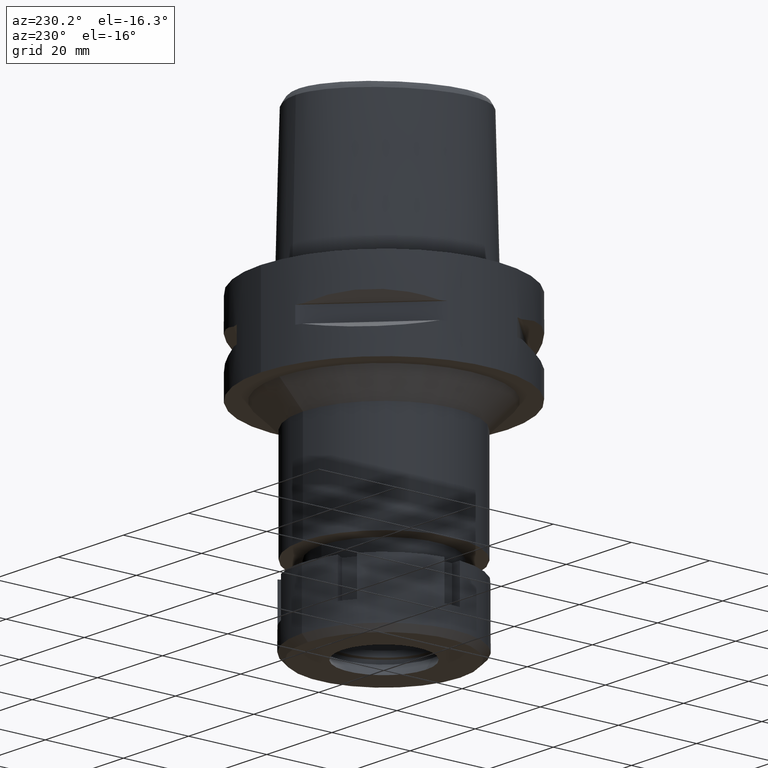
[diagram: clean part render]
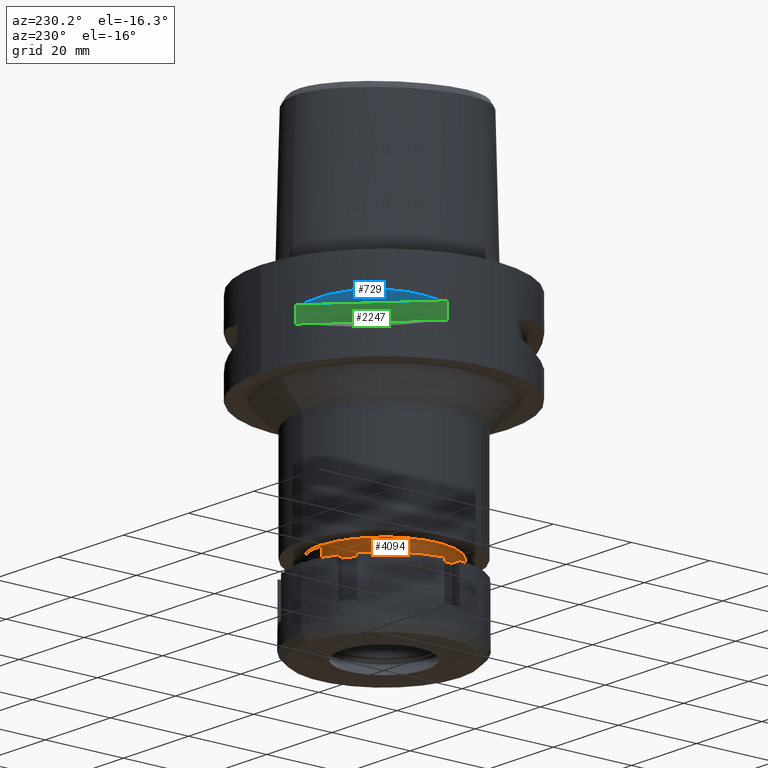
[diagram: same view with three faces highlighted in distinct colors, each labeled with its STEP entity id]
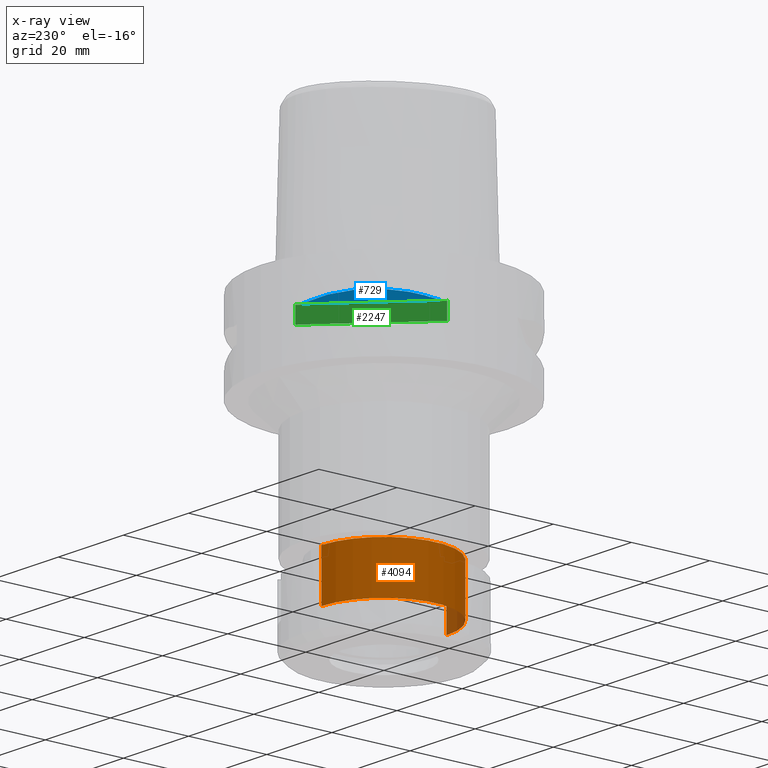
[diagram: x-ray of the same camera — body ghosted, the three highlighted faces saturated]
A machine part, auxiliary view with three faces highlighted in distinct colors.
The next image is the same camera in x-ray (body ghosted, the three faces saturated) — at least one of them is partly hidden behind the body in this view.
Their STEP definitions:

[orange] entity #4094 — the highlighted cylindrical surface (partial cylindrical patch) has radius 16 mm, axis along (0, 0, -1).
#31 = DIRECTION ( 'NONE',  ( 0.0000000000000000000, 0.0000000000000000000, -1.000000000000000000 ) ) ;
#409 = DIRECTION ( 'NONE',  ( 0.0000000000000000000, 1.000000000000000000, 0.0000000000000000000 ) ) ;
#497 = ORIENTED_EDGE ( 'NONE', *, *, #5129, .T. ) ;
#711 = EDGE_CURVE ( 'NONE', #2809, #4864, #4656, .T. ) ;
#761 = ORIENTED_EDGE ( 'NONE', *, *, #4172, .F. ) ;
#830 = ORIENTED_EDGE ( 'NONE', *, *, #1530, .T. ) ;
#936 = DIRECTION ( 'NONE',  ( 0.0000000000000000000, -1.000000000000000000, 0.0000000000000000000 ) ) ;
#1309 = CARTESIAN_POINT ( 'NONE',  ( 0.0000000000000000000, -16.00000000000000000, -54.50000000000000000 ) ) ;
#1530 = EDGE_CURVE ( 'NONE', #4864, #1945, #3738, .T. ) ;
#1618 = EDGE_LOOP ( 'NONE', ( #830, #761, #497, #2200 ) ) ;
#1654 = CARTESIAN_POINT ( 'NONE',  ( 0.0000000000000000000, 1.265672466918999865E-14, 3.350000000000000089 ) ) ;
#1656 = AXIS2_PLACEMENT_3D ( 'NONE', #1654, #5090, #3355 ) ;
#1728 = FACE_OUTER_BOUND ( 'NONE', #1618, .T. ) ;
#1945 = VERTEX_POINT ( 'NONE', #4846 ) ;
#2145 = CYLINDRICAL_SURFACE ( 'NONE', #1656, 16.00000000000000000 ) ;
#2200 = ORIENTED_EDGE ( 'NONE', *, *, #711, .T. ) ;
#2402 = VECTOR ( 'NONE', #5442, 1000.000000000000000 ) ;
#2582 = CARTESIAN_POINT ( 'NONE',  ( 0.0000000000000000000, 16.00000000000000000, -54.50000000000000000 ) ) ;
#2634 = CARTESIAN_POINT ( 'NONE',  ( 0.0000000000000000000, 1.265672466918999865E-14, -54.50000000000000000 ) ) ;
#2809 = VERTEX_POINT ( 'NONE', #2582 ) ;
#3304 = CARTESIAN_POINT ( 'NONE',  ( 0.0000000000000000000, 1.265672466918999865E-14, -67.00000000000000000 ) ) ;
#3355 = DIRECTION ( 'NONE',  ( 0.0000000000000000000, -1.000000000000000000, 0.0000000000000000000 ) ) ;
#3475 = AXIS2_PLACEMENT_3D ( 'NONE', #3304, #4962, #409 ) ;
#3590 = CIRCLE ( 'NONE', #5328, 16.00000000000000000 ) ;
#3728 = CARTESIAN_POINT ( 'NONE',  ( 0.0000000000000000000, -16.00000000000000000, -54.50000000000000000 ) ) ;
#3738 = CIRCLE ( 'NONE', #3475, 16.00000000000000000 ) ;
#3748 = DIRECTION ( 'NONE',  ( 0.0000000000000000000, 0.0000000000000000000, -1.000000000000000000 ) ) ;
#3775 = VECTOR ( 'NONE', #31, 1000.000000000000000 ) ;
#3827 = CARTESIAN_POINT ( 'NONE',  ( 0.0000000000000000000, 16.00000000000000000, -67.00000000000000000 ) ) ;
#4094 = ADVANCED_FACE ( 'NONE', ( #1728 ), #2145, .T. ) ;
#4172 = EDGE_CURVE ( 'NONE', #4373, #1945, #4252, .T. ) ;
#4233 = CARTESIAN_POINT ( 'NONE',  ( 0.0000000000000000000, 16.00000000000000000, -54.50000000000000000 ) ) ;
#4252 = LINE ( 'NONE', #1309, #3775 ) ;
#4373 = VERTEX_POINT ( 'NONE', #3728 ) ;
#4656 = LINE ( 'NONE', #4233, #2402 ) ;
#4846 = CARTESIAN_POINT ( 'NONE',  ( 0.0000000000000000000, -16.00000000000000000, -67.00000000000000000 ) ) ;
#4864 = VERTEX_POINT ( 'NONE', #3827 ) ;
#4962 = DIRECTION ( 'NONE',  ( 0.0000000000000000000, 0.0000000000000000000, 1.000000000000000000 ) ) ;
#5090 = DIRECTION ( 'NONE',  ( 0.0000000000000000000, 0.0000000000000000000, -1.000000000000000000 ) ) ;
#5129 = EDGE_CURVE ( 'NONE', #4373, #2809, #3590, .T. ) ;
#5328 = AXIS2_PLACEMENT_3D ( 'NONE', #2634, #3748, #936 ) ;
#5442 = DIRECTION ( 'NONE',  ( 0.0000000000000000000, 0.0000000000000000000, -1.000000000000000000 ) ) ;

[blue] entity #729 — the highlighted planar face has unit normal (0.3536, -0.3536, 0.866).
#9 = CARTESIAN_POINT ( 'NONE',  ( -14.84422749192772883, 27.88214534473898354, -8.906206096515614234 ) ) ;
#32 = CARTESIAN_POINT ( 'NONE',  ( -10.44775724750000023, 29.71690375017999841, -9.949999999998999201 ) ) ;
#78 = ORIENTED_EDGE ( 'NONE', *, *, #4042, .F. ) ;
#134 = VERTEX_POINT ( 'NONE', #5116 ) ;
#435 = CARTESIAN_POINT ( 'NONE',  ( -18.81455742157509903, 25.37277178172508840, -8.309746333145060504 ) ) ;
#436 = CARTESIAN_POINT ( 'NONE',  ( -37.12310601229000184, 8.838834764832000701, -7.583270440698999693 ) ) ;
#612 = EDGE_CURVE ( 'NONE', #134, #2803, #5111, .T. ) ;
#729 = ADVANCED_FACE ( 'NONE', ( #5040 ), #1262, .F. ) ;
#804 = VECTOR ( 'NONE', #2545, 1000.000000000000114 ) ;
#844 = CARTESIAN_POINT ( 'NONE',  ( -23.90617837143843971, 20.64154884331406237, -8.160613588453228928 ) ) ;
#895 = CARTESIAN_POINT ( 'NONE',  ( -25.37272068394556257, 18.81462633037747167, -8.309724968578816373 ) ) ;
#1262 = PLANE ( 'NONE',  #3555 ) ;
#2490 = CARTESIAN_POINT ( 'NONE',  ( -10.44775724750000023, 29.71690375017999841, -9.949999999998999201 ) ) ;
#2545 = DIRECTION ( 'NONE',  ( -0.7071067811865474617, -0.7071067811865474617, 0.0000000000000000000 ) ) ;
#2565 = CARTESIAN_POINT ( 'NONE',  ( -29.71690375017999841, 10.44775724750000023, -9.949999999998999201 ) ) ;
#2593 = CARTESIAN_POINT ( 'NONE',  ( -27.88210502980663819, 14.84430321584963330, -8.906184731949373656 ) ) ;
#2803 = VERTEX_POINT ( 'NONE', #4295 ) ;
#3124 = EDGE_LOOP ( 'NONE', ( #4433, #78 ) ) ;
#3405 = CARTESIAN_POINT ( 'NONE',  ( -12.70092055726457225, 28.92474506846247451, -9.353547358238497367 ) ) ;
#3555 = AXIS2_PLACEMENT_3D ( 'NONE', #436, #4678, #5061 ) ;
#4042 = EDGE_CURVE ( 'NONE', #134, #2803, #4948, .T. ) ;
#4176 = CARTESIAN_POINT ( 'NONE',  ( -20.64154884331406237, 23.90617837143844682, -8.160627831321445314 ) ) ;
#4277 = CARTESIAN_POINT ( 'NONE',  ( -28.92472615203844910, 12.70097436187914575, -9.353533115194341718 ) ) ;
#4295 = CARTESIAN_POINT ( 'NONE',  ( -29.71690375017999841, 10.44775724750000023, -9.949999999998999201 ) ) ;
#4433 = ORIENTED_EDGE ( 'NONE', *, *, #612, .T. ) ;
#4678 = DIRECTION ( 'NONE',  ( 0.3535533905933054277, -0.3535533905933054277, 0.8660254037844128394 ) ) ;
#4948 = B_SPLINE_CURVE_WITH_KNOTS ( 'NONE', 3,
 ( #2490, #3405, #9, #435, #4176, #844, #895, #2593, #4277, #2565 ),
 .UNSPECIFIED., .F., .F.,
 ( 4, 2, 2, 2, 4 ),
 ( 0.0000000000000000000, 0.2500000000000000000, 0.5000000000000000000, 0.7500000000000000000, 1.000000000000000000 ),
 .UNSPECIFIED. ) ;
#5040 = FACE_OUTER_BOUND ( 'NONE', #3124, .T. ) ;
#5061 = DIRECTION ( 'NONE',  ( -0.7071067811865475727, -0.7071067811865475727, 0.0000000000000000000 ) ) ;
#5111 = LINE ( 'NONE', #32, #804 ) ;
#5116 = CARTESIAN_POINT ( 'NONE',  ( -10.44775724750000023, 29.71690375017999841, -9.949999999998999201 ) ) ;

[green] entity #2247 — the highlighted planar face has unit normal (0.7071, -0.7071, 0).
#60 = ORIENTED_EDGE ( 'NONE', *, *, #2456, .T. ) ;
#158 = ORIENTED_EDGE ( 'NONE', *, *, #1902, .T. ) ;
#432 = DIRECTION ( 'NONE',  ( 0.0000000000000000000, 0.0000000000000000000, -1.000000000000000000 ) ) ;
#768 = CARTESIAN_POINT ( 'NONE',  ( -8.981198972019999616, 30.19251670572000279, -9.950000000000001066 ) ) ;
#861 = CARTESIAN_POINT ( 'NONE',  ( -30.19251670572000279, 8.981198972017999438, -14.05000000000000071 ) ) ;
#990 = DIRECTION ( 'NONE',  ( -0.7071067811865474617, -0.7071067811865474617, 0.0000000000000000000 ) ) ;
#1090 = CARTESIAN_POINT ( 'NONE',  ( -8.981198972017999438, 30.19251670572000279, -14.05000000000000071 ) ) ;
#1176 = PLANE ( 'NONE',  #4093 ) ;
#1276 = CARTESIAN_POINT ( 'NONE',  ( -30.19251670572000279, 8.981198972019999616, -14.05000000000000071 ) ) ;
#1696 = VERTEX_POINT ( 'NONE', #1090 ) ;
#1852 = LINE ( 'NONE', #4765, #4088 ) ;
#1902 = EDGE_CURVE ( 'NONE', #1696, #4825, #1852, .T. ) ;
#1975 = VECTOR ( 'NONE', #5323, 1000.000000000000000 ) ;
#2018 = VERTEX_POINT ( 'NONE', #4444 ) ;
#2247 = ADVANCED_FACE ( 'NONE', ( #2428 ), #1176, .F. ) ;
#2365 = VERTEX_POINT ( 'NONE', #768 ) ;
#2428 = FACE_OUTER_BOUND ( 'NONE', #4104, .T. ) ;
#2456 = EDGE_CURVE ( 'NONE', #2365, #1696, #4428, .T. ) ;
#2513 = DIRECTION ( 'NONE',  ( 0.7071067811865475727, -0.7071067811865475727, 0.0000000000000000000 ) ) ;
#2609 = LINE ( 'NONE', #861, #4244 ) ;
#2721 = CARTESIAN_POINT ( 'NONE',  ( -8.981198972017999438, 30.19251670572000279, -9.950000000000001066 ) ) ;
#2895 = EDGE_CURVE ( 'NONE', #4825, #2018, #2609, .T. ) ;
#3031 = ORIENTED_EDGE ( 'NONE', *, *, #2895, .T. ) ;
#3492 = EDGE_CURVE ( 'NONE', #2365, #2018, #5371, .T. ) ;
#3756 = CARTESIAN_POINT ( 'NONE',  ( -33.72899346260000186, 5.444722215136000187, -9.950000000000001066 ) ) ;
#3772 = VECTOR ( 'NONE', #5395, 1000.000000000000114 ) ;
#4067 = CARTESIAN_POINT ( 'NONE',  ( -8.981198972017999438, 30.19251670572000279, -9.950000000000001066 ) ) ;
#4088 = VECTOR ( 'NONE', #990, 1000.000000000000114 ) ;
#4093 = AXIS2_PLACEMENT_3D ( 'NONE', #3756, #2513, #432 ) ;
#4104 = EDGE_LOOP ( 'NONE', ( #4457, #60, #158, #3031 ) ) ;
#4244 = VECTOR ( 'NONE', #4267, 1000.000000000000000 ) ;
#4267 = DIRECTION ( 'NONE',  ( 0.0000000000000000000, 0.0000000000000000000, 1.000000000000000000 ) ) ;
#4428 = LINE ( 'NONE', #2721, #1975 ) ;
#4444 = CARTESIAN_POINT ( 'NONE',  ( -30.19251670572000279, 8.981198972017999438, -9.950000000000001066 ) ) ;
#4457 = ORIENTED_EDGE ( 'NONE', *, *, #3492, .F. ) ;
#4765 = CARTESIAN_POINT ( 'NONE',  ( -8.981198972017999438, 30.19251670572000279, -14.05000000000000071 ) ) ;
#4825 = VERTEX_POINT ( 'NONE', #1276 ) ;
#5323 = DIRECTION ( 'NONE',  ( 0.0000000000000000000, 0.0000000000000000000, -1.000000000000000000 ) ) ;
#5371 = LINE ( 'NONE', #4067, #3772 ) ;
#5395 = DIRECTION ( 'NONE',  ( -0.7071067811865474617, -0.7071067811865474617, 0.0000000000000000000 ) ) ;